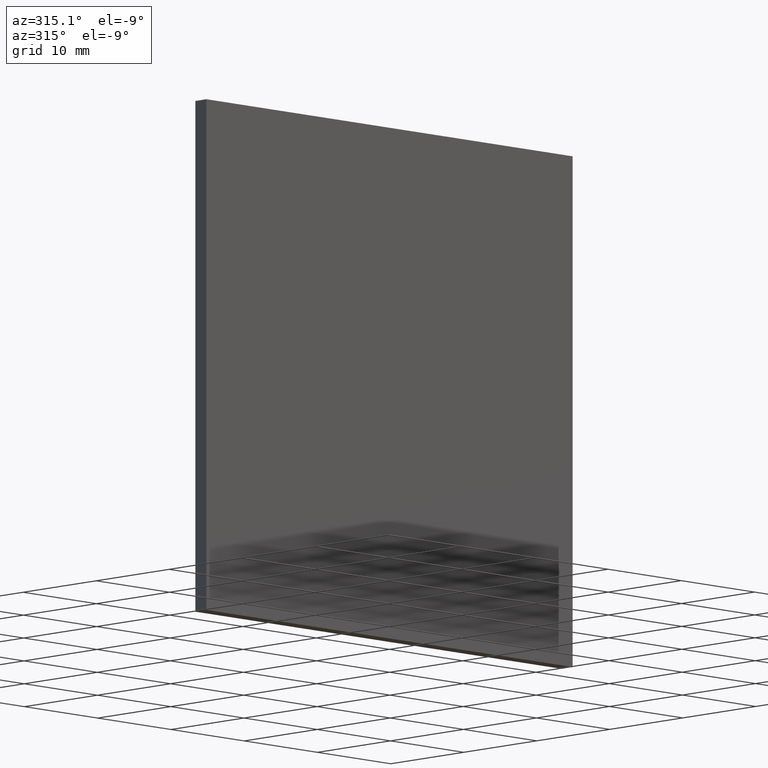
[diagram: clean part render]
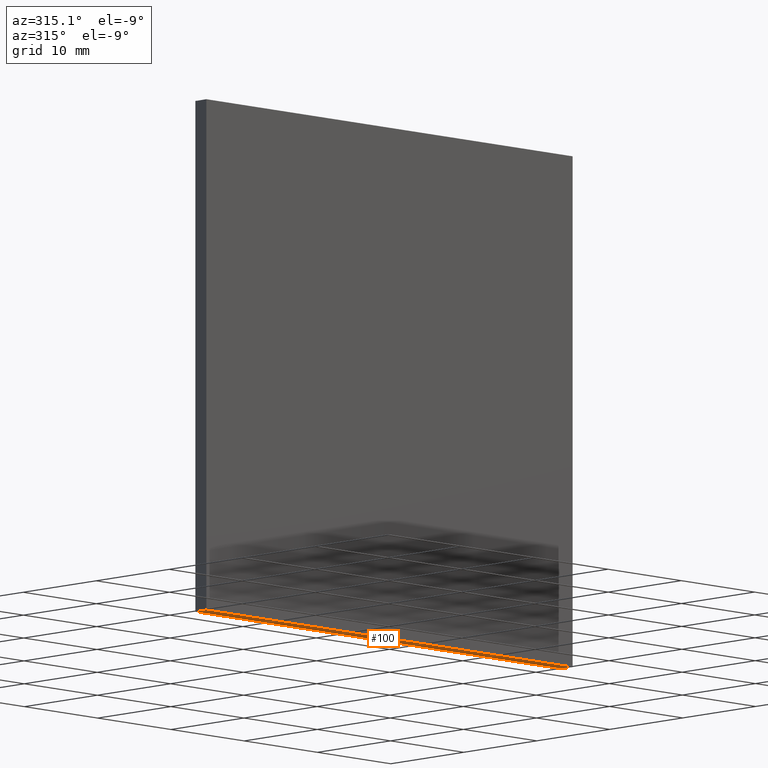
[diagram: same view with one face highlighted and labeled with its STEP entity id]
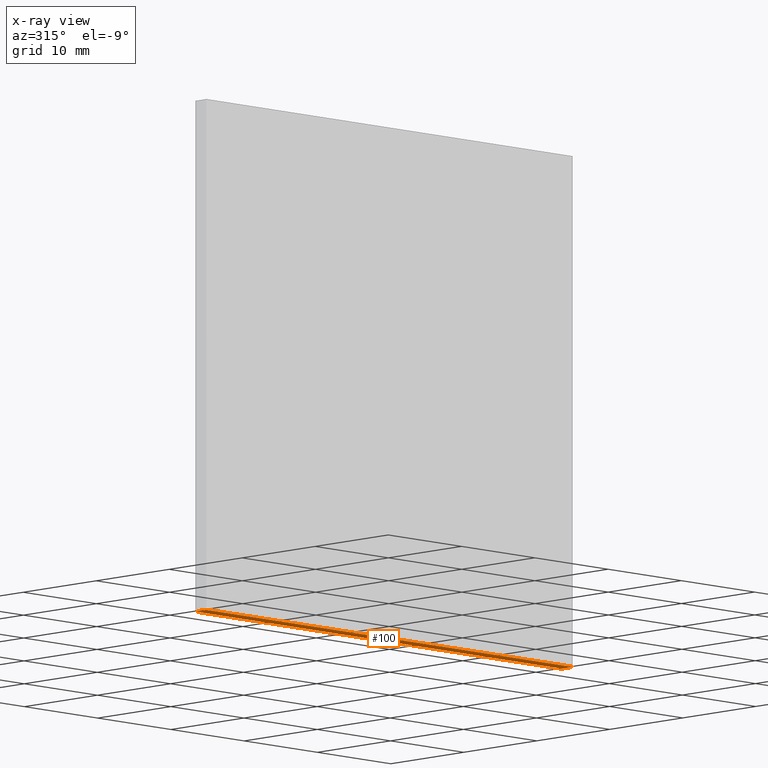
[diagram: x-ray of the same camera — body ghosted, the highlighted face saturated]
A machine part, auxiliary view. The second image highlights one B-rep face of the part: STEP entity #100.
The next image is the same camera in x-ray: the body ghosted, the highlighted face saturated — about 0% of this face is hidden behind the body in this view.
In plain terms, the highlighted planar face has unit normal (0, 0, 1).
Its self-contained STEP definition (entity closure, byte-faithful):
#6 = EDGE_CURVE ( 'NONE', #50, #91, #53, .T. ) ;
#11 = ORIENTED_EDGE ( 'NONE', *, *, #115, .F. ) ;
#18 = CARTESIAN_POINT ( 'NONE',  ( -24.99999999999999300, 0.0000000000000000000, -25.00000000000000400 ) ) ;
#20 = CARTESIAN_POINT ( 'NONE',  ( 25.00000000000000700, 0.0000000000000000000, -25.00000000000000400 ) ) ;
#21 = CARTESIAN_POINT ( 'NONE',  ( -24.99999999999999300, 1.520000000000000000, -25.00000000000000400 ) ) ;
#35 = CARTESIAN_POINT ( 'NONE',  ( -24.99999999999999300, 0.0000000000000000000, -25.00000000000000400 ) ) ;
#37 = CARTESIAN_POINT ( 'NONE',  ( -24.99999999999999300, 1.520000000000000000, -25.00000000000000400 ) ) ;
#46 = VECTOR ( 'NONE', #161, 1000.000000000000000 ) ;
#50 = VERTEX_POINT ( 'NONE', #80 ) ;
#53 = LINE ( 'NONE', #147, #46 ) ;
#73 = CARTESIAN_POINT ( 'NONE',  ( 25.00000000000000700, 1.520000000000000000, -25.00000000000000400 ) ) ;
#78 = LINE ( 'NONE', #73, #175 ) ;
#80 = CARTESIAN_POINT ( 'NONE',  ( -24.99999999999999300, 1.520000000000000000, -25.00000000000000400 ) ) ;
#91 = VERTEX_POINT ( 'NONE', #18 ) ;
#92 = EDGE_CURVE ( 'NONE', #148, #91, #193, .T. ) ;
#100 = ADVANCED_FACE ( 'NONE', ( #152 ), #111, .F. ) ;
#104 = ORIENTED_EDGE ( 'NONE', *, *, #168, .T. ) ;
#107 = ORIENTED_EDGE ( 'NONE', *, *, #6, .F. ) ;
#108 = EDGE_LOOP ( 'NONE', ( #194, #107, #11, #104 ) ) ;
#110 = DIRECTION ( 'NONE',  ( 0.0000000000000000000, 0.0000000000000000000, 1.000000000000000000 ) ) ;
#111 = PLANE ( 'NONE',  #146 ) ;
#115 = EDGE_CURVE ( 'NONE', #176, #50, #135, .T. ) ;
#124 = DIRECTION ( 'NONE',  ( -1.000000000000000000, -0.0000000000000000000, -0.0000000000000000000 ) ) ;
#135 = LINE ( 'NONE', #37, #144 ) ;
#138 = CARTESIAN_POINT ( 'NONE',  ( 25.00000000000000700, 1.520000000000000000, -25.00000000000000400 ) ) ;
#144 = VECTOR ( 'NONE', #181, 1000.000000000000000 ) ;
#146 = AXIS2_PLACEMENT_3D ( 'NONE', #21, #110, #199 ) ;
#147 = CARTESIAN_POINT ( 'NONE',  ( -24.99999999999999300, 1.520000000000000000, -25.00000000000000400 ) ) ;
#148 = VERTEX_POINT ( 'NONE', #20 ) ;
#152 = FACE_OUTER_BOUND ( 'NONE', #108, .T. ) ;
#155 = DIRECTION ( 'NONE',  ( -0.0000000000000000000, -1.000000000000000000, -0.0000000000000000000 ) ) ;
#161 = DIRECTION ( 'NONE',  ( -0.0000000000000000000, -1.000000000000000000, -0.0000000000000000000 ) ) ;
#168 = EDGE_CURVE ( 'NONE', #176, #148, #78, .T. ) ;
#170 = VECTOR ( 'NONE', #124, 1000.000000000000000 ) ;
#175 = VECTOR ( 'NONE', #155, 1000.000000000000000 ) ;
#176 = VERTEX_POINT ( 'NONE', #138 ) ;
#181 = DIRECTION ( 'NONE',  ( -1.000000000000000000, -0.0000000000000000000, -0.0000000000000000000 ) ) ;
#193 = LINE ( 'NONE', #35, #170 ) ;
#194 = ORIENTED_EDGE ( 'NONE', *, *, #92, .T. ) ;
#199 = DIRECTION ( 'NONE',  ( 1.000000000000000000, 0.0000000000000000000, -0.0000000000000000000 ) ) ;